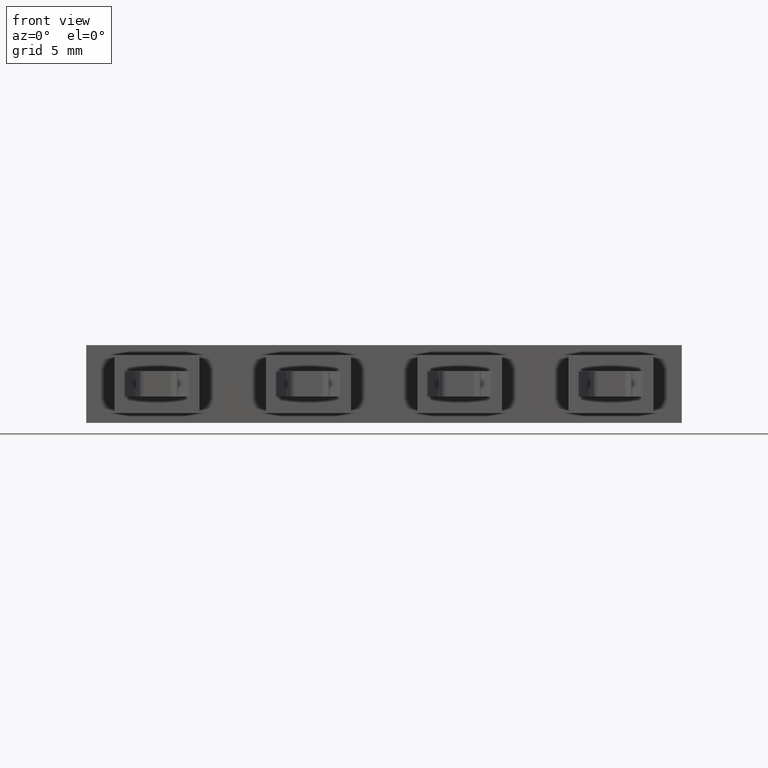
[diagram: clean part render]
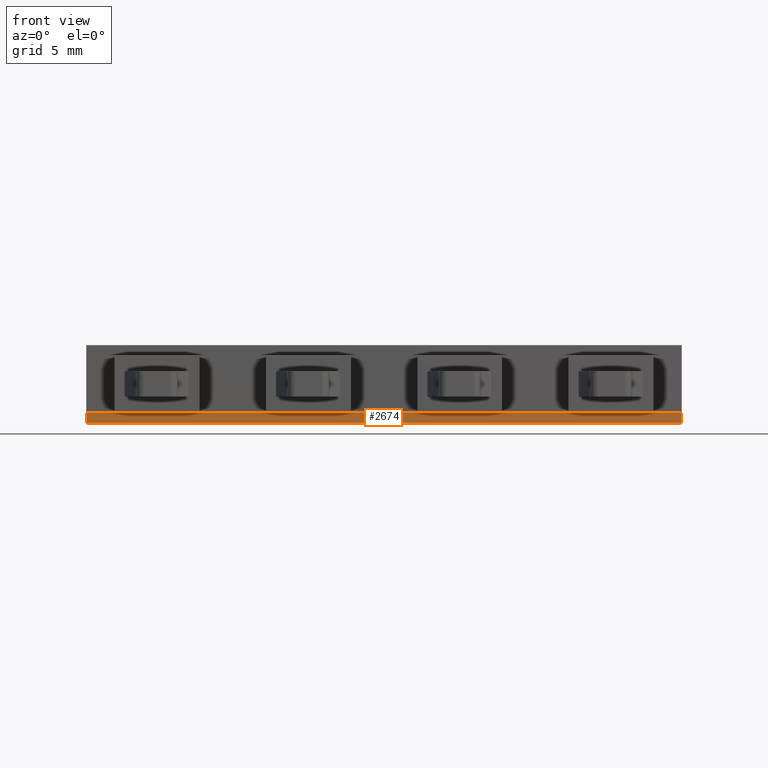
[diagram: same view with one face highlighted and labeled with its STEP entity id]
A machine part, front view. The second image highlights one B-rep face of the part: STEP entity #2674.
In plain terms, the highlighted planar face has unit normal (-0, 1, 0).
Its self-contained STEP definition (entity closure, byte-faithful):
#542 = CARTESIAN_POINT ( 'NONE',  ( 31.39999999999999900, 2.700000000000005100, -0.8000000000000000400 ) ) ;
#547 = FACE_OUTER_BOUND ( 'NONE', #1496, .T. ) ;
#562 = PLANE ( 'NONE',  #2284 ) ;
#577 = DIRECTION ( 'NONE',  ( -2.775557561562890400E-016, 1.000000000000000000, 0.0000000000000000000 ) ) ;
#585 = DIRECTION ( 'NONE',  ( -1.000000000000000000, -2.775557561562890400E-016, 0.0000000000000000000 ) ) ;
#592 = DIRECTION ( 'NONE',  ( -1.000000000000000000, -2.775557561562890400E-016, 0.0000000000000000000 ) ) ;
#600 = LINE ( 'NONE', #601, #2024 ) ;
#601 = CARTESIAN_POINT ( 'NONE',  ( 29.39999999999999500, 2.700000000000004600, 0.0000000000000000000 ) ) ;
#976 = CARTESIAN_POINT ( 'NONE',  ( 42.09999999999999400, 2.700000000000006800, -0.6999999999999999600 ) ) ;
#1041 = CARTESIAN_POINT ( 'NONE',  ( -1.108295554096292100E-016, 2.699999999999997500, -0.6999999999999999600 ) ) ;
#1058 = CARTESIAN_POINT ( 'NONE',  ( 42.10000000000000100, 2.700000000000007300, 0.0000000000000000000 ) ) ;
#1098 = CARTESIAN_POINT ( 'NONE',  ( 0.0000000000000000000, 2.699999999999997500, 0.0000000000000000000 ) ) ;
#1157 = DIRECTION ( 'NONE',  ( -1.000000000000000000, -2.775557561562890400E-016, 0.0000000000000000000 ) ) ;
#1163 = LINE ( 'NONE', #1180, #2000 ) ;
#1180 = CARTESIAN_POINT ( 'NONE',  ( 31.39999999999999900, 2.700000000000005100, -0.6999999999999999600 ) ) ;
#1244 = DIRECTION ( 'NONE',  ( 0.0000000000000000000, 0.0000000000000000000, -1.000000000000000000 ) ) ;
#1246 = CARTESIAN_POINT ( 'NONE',  ( 42.09999999999999400, 2.700000000000006800, -0.8000000000000000400 ) ) ;
#1250 = DIRECTION ( 'NONE',  ( 0.0000000000000000000, 0.0000000000000000000, -1.000000000000000000 ) ) ;
#1254 = CARTESIAN_POINT ( 'NONE',  ( 0.0000000000000000000, 2.699999999999997500, -0.8000000000000000400 ) ) ;
#1260 = LINE ( 'NONE', #1246, #1982 ) ;
#1267 = LINE ( 'NONE', #1254, #2008 ) ;
#1292 = VERTEX_POINT ( 'NONE', #976 ) ;
#1316 = VERTEX_POINT ( 'NONE', #1058 ) ;
#1319 = VERTEX_POINT ( 'NONE', #1041 ) ;
#1405 = VERTEX_POINT ( 'NONE', #1098 ) ;
#1496 = EDGE_LOOP ( 'NONE', ( #1964, #1935, #1918, #1961 ) ) ;
#1918 = ORIENTED_EDGE ( 'NONE', *, *, #2403, .F. ) ;
#1935 = ORIENTED_EDGE ( 'NONE', *, *, #2373, .F. ) ;
#1961 = ORIENTED_EDGE ( 'NONE', *, *, #2415, .T. ) ;
#1964 = ORIENTED_EDGE ( 'NONE', *, *, #2393, .T. ) ;
#1982 = VECTOR ( 'NONE', #1250, 1000.000000000000000 ) ;
#2000 = VECTOR ( 'NONE', #1157, 1000.000000000000000 ) ;
#2008 = VECTOR ( 'NONE', #1244, 1000.000000000000000 ) ;
#2024 = VECTOR ( 'NONE', #592, 1000.000000000000000 ) ;
#2284 = AXIS2_PLACEMENT_3D ( 'NONE', #542, #577, #585 ) ;
#2373 = EDGE_CURVE ( 'NONE', #1292, #1319, #1163, .T. ) ;
#2393 = EDGE_CURVE ( 'NONE', #1405, #1319, #1267, .T. ) ;
#2403 = EDGE_CURVE ( 'NONE', #1316, #1292, #1260, .T. ) ;
#2415 = EDGE_CURVE ( 'NONE', #1316, #1405, #600, .T. ) ;
#2674 = ADVANCED_FACE ( 'NONE', ( #547 ), #562, .F. ) ;